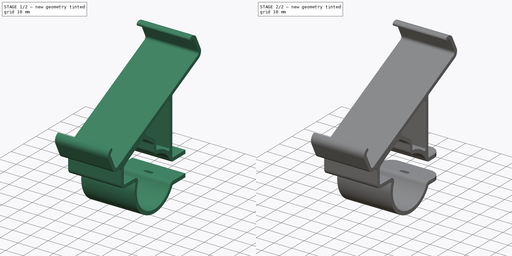
[diagram: build sequence overview — one tinted view per stage of 2, left to right]
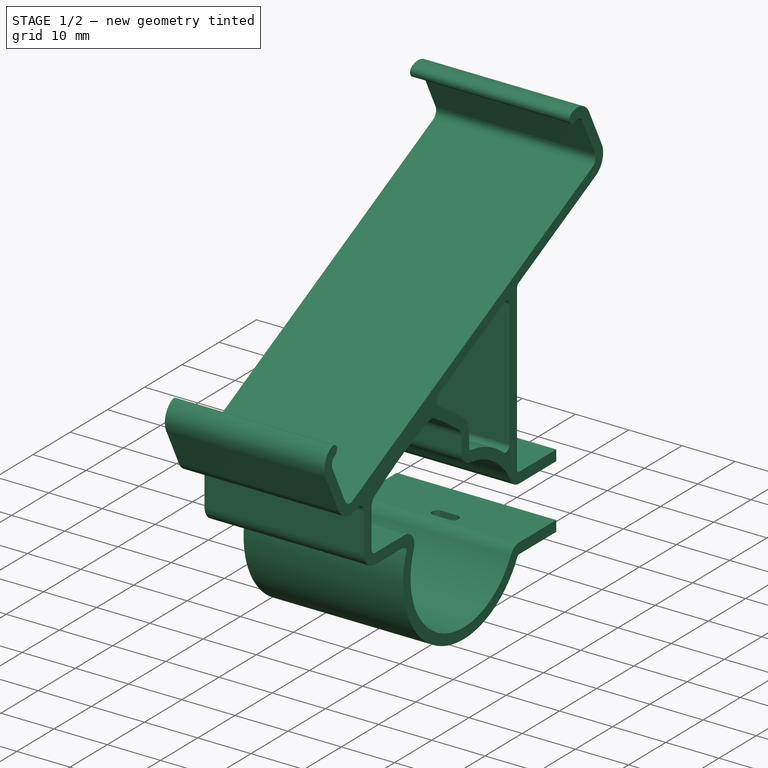
[diagram: stage 1 of 2 — iso view after this stage's code; geometry added in this stage tinted green]
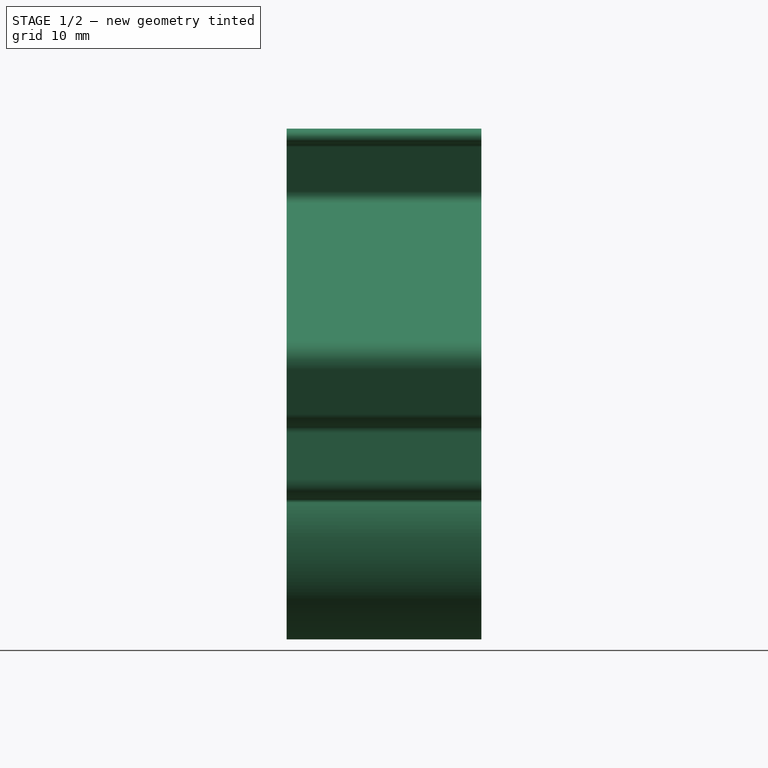
[diagram: stage 1 of 2 — front view after this stage's code; geometry added in this stage tinted green]
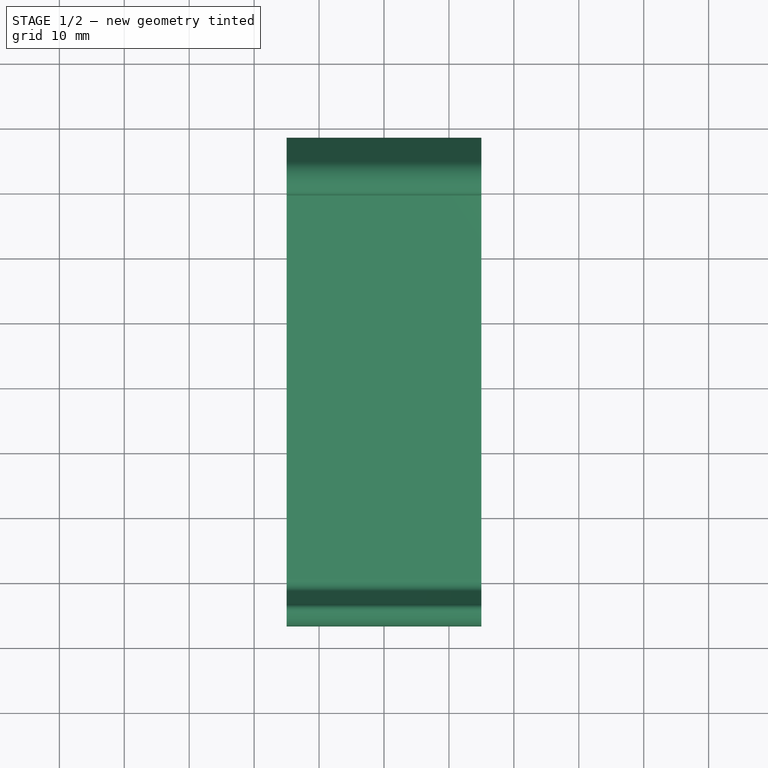
[diagram: stage 1 of 2 — top view after this stage's code; geometry added in this stage tinted green]
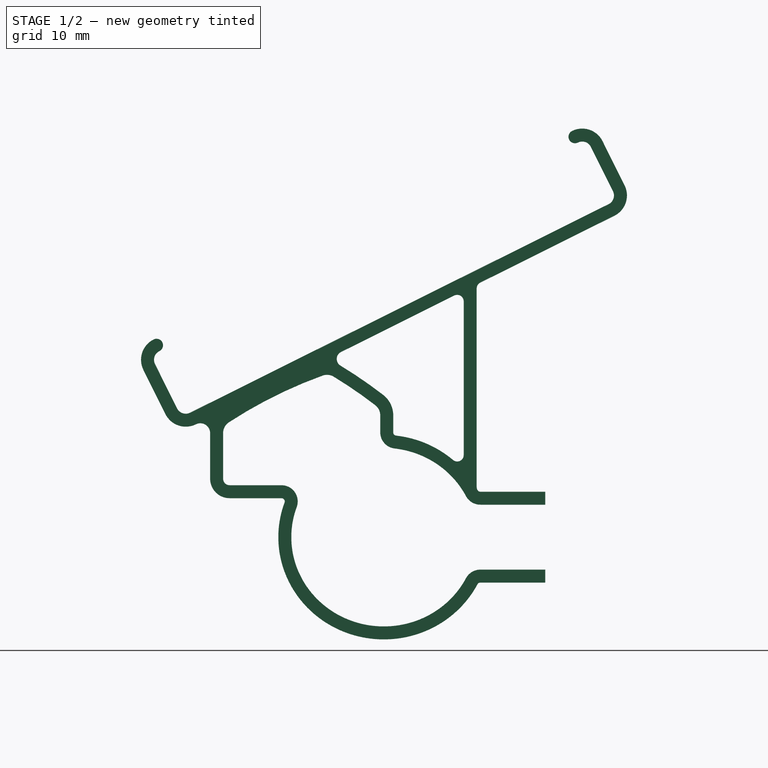
[diagram: stage 1 of 2 — right view after this stage's code; geometry added in this stage tinted green]
FCSTD DOCUMENT  (FreeCAD 0.19R24291 (Git))
Label: motorbike-mobile-support_v2
Comment: FreeCAD-models by mgesteiro -- https://github.com/mgesteiro/FreeCAD-models
License: Creative Commons Attribution-ShareAlike
LicenseURL: http://creativecommons.org/licenses/by-sa/4.0/
objects: Sketcher::SketchObject×2, Image::ImagePlane×1, PartDesign::Pad×1, PartDesign::Pocket×1, PartDesign::Fillet×1, PartDesign::Body×1
note: 9 computed .brp shape members not serialized (recipe doc carries the construction recipe); baked Part::Feature solids carry a one-line shape summary decoded from their .brp

FEATURE [Sketcher::SketchObject] Sketch  label="Sketch-profile"
  FullyConstrained = true
  MapMode = 5
  Placement = pos=(0,0,0) rot=(0.57735,0.57735,0.57735;2.0944rad)
  Support = -> [YZ_Plane]
  sketch-geometry (87):
    g0: ArcOfEllipse CenterX=0 CenterY=0 CenterZ=0 NormalX=0 NormalY=0 NormalZ=1 MajorRadius=14.25 MinorRadius=13.75 AngleXU=0 StartAngle=0.47747 EndAngle=1.4535
    g1: LineSegment StartX=14.25 StartY=0 StartZ=0 EndX=-14.25 EndY=0 EndZ=0
    g2: LineSegment StartX=0 StartY=13.75 StartZ=0 EndX=0 EndY=-13.75 EndZ=0
    g3: GeomPoint X=3.74166 Y=0 Z=0
    g4: ArcOfEllipse CenterX=0 CenterY=0 CenterZ=0 NormalX=0 NormalY=0 NormalZ=1 MajorRadius=16.25 MinorRadius=15.75 AngleXU=0 StartAngle=5.95633 EndAngle=6.28319
    g5: LineSegment StartX=16.25 StartY=0 StartZ=0 EndX=-16.25 EndY=0 EndZ=0
    g6: LineSegment StartX=0 StartY=15.75 StartZ=0 EndX=0 EndY=-15.75 EndZ=0
    g7: GeomPoint X=4 Y=0 Z=0
    g8: LineSegment StartX=-15.7616 StartY=5.99997 StartZ=0 EndX=-23.75 EndY=5.99997 EndZ=0
    g9: LineSegment StartX=-15.7616 StartY=8 StartZ=0 EndX=-23.75 EndY=8 EndZ=0
    g10: ArcOfCircle CenterX=-15.7616 CenterY=5.49997 CenterZ=0 NormalX=0 NormalY=0 NormalZ=1 AngleXU=0 Radius=0.5 StartAngle=5.92817 EndAngle=7.85398
    g11: ArcOfCircle CenterX=-15.7616 CenterY=5.49997 CenterZ=0 NormalX=0 NormalY=0 NormalZ=1 AngleXU=0 Radius=2.50003 StartAngle=5.92819 EndAngle=7.85398
    g12: ArcOfCircle CenterX=14.8595 CenterY=-7.5 CenterZ=0 NormalX=0 NormalY=0 NormalZ=1 AngleXU=0 Radius=2.5 StartAngle=1.5708 EndAngle=2.6494
    g13: LineSegment StartX=14.8595 StartY=-5 StartZ=0 EndX=24.8595 EndY=-5 EndZ=0
    g14: ArcOfCircle CenterX=14.8595 CenterY=-7.5 CenterZ=0 NormalX=0 NormalY=0 NormalZ=1 AngleXU=0 Radius=0.5 StartAngle=1.5708 EndAngle=2.64938
    g15: LineSegment StartX=14.8595 StartY=-7 StartZ=0 EndX=24.8595 EndY=-7 EndZ=0
    g16: LineSegment StartX=24.8595 StartY=-5 StartZ=0 EndX=24.8595 EndY=-7 EndZ=0
    g17: LineSegment StartX=-24.75 StartY=9 StartZ=0 EndX=-24.75 EndY=16.0244 EndZ=0
    g18: LineSegment StartX=-0.55 StartY=18.75 StartZ=0 EndX=-0.55 EndY=16.1395 EndZ=0
    g19: ArcOfCircle CenterX=14.8595 CenterY=7.5 CenterZ=0 NormalX=0 NormalY=0 NormalZ=1 AngleXU=0 Radius=2.5 StartAngle=3.63379 EndAngle=4.71239
    g20: LineSegment StartX=14.8595 StartY=5 StartZ=0 EndX=24.8595 EndY=5 EndZ=0
    g21: LineSegment StartX=24.8595 StartY=5 StartZ=0 EndX=24.8595 EndY=7 EndZ=0
    g22: LineSegment StartX=-26.75 StartY=9 StartZ=0 EndX=-26.75 EndY=16.0243 EndZ=0
    g23: LineSegment StartX=1.45 StartY=18.75 StartZ=0 EndX=1.45 EndY=16.1395 EndZ=0
    g24: ArcOfCircle CenterX=14.8595 CenterY=7.5 CenterZ=0 NormalX=0 NormalY=0 NormalZ=1 AngleXU=0 Radius=0.5 StartAngle=3.63379 EndAngle=4.71239
    g25: LineSegment StartX=14.8595 StartY=7 StartZ=0 EndX=24.8595 EndY=7 EndZ=0
    g26: LineSegment StartX=12.6563 StartY=-6.31859 StartZ=0 EndX=14.8595 EndY=-7.5 EndZ=0
    g27: LineSegment StartX=-13.4175 StartY=4.63098 StartZ=0 EndX=-15.7616 EndY=5.49997 EndZ=0
    g28: GeomPoint X=12.6563 Y=-6.31859 Z=0
    g29: ArcOfEllipse CenterX=0 CenterY=0 CenterZ=0 NormalX=0 NormalY=0 NormalZ=1 MajorRadius=16.25 MinorRadius=15.75 AngleXU=-0.000460382 StartAngle=2.7971 EndAngle=5.80433
    g30: ArcOfCircle CenterX=1.95 CenterY=16.1395 CenterZ=0 NormalX=0 NormalY=0 NormalZ=1 AngleXU=0 Radius=2.5 StartAngle=3.14159 EndAngle=4.59918
    g31: LineSegment StartX=1.95 StartY=16.1395 StartZ=0 EndX=1.66757 EndY=13.6555 EndZ=0
    g32: GeomPoint X=1.66757 Y=13.6555 Z=0
    g33: LineSegment StartX=12.6563 StartY=6.31859 StartZ=0 EndX=14.8595 EndY=7.5 EndZ=0
    g34: GeomPoint X=12.6563 Y=6.31859 Z=0
    g35: ArcOfEllipse CenterX=0 CenterY=0 CenterZ=0 NormalX=0 NormalY=0 NormalZ=1 MajorRadius=16.25 MinorRadius=15.75 AngleXU=0.000127427 StartAngle=0.85548 EndAngle=1.45388
    g36: GeomPoint X=-13.4175 Y=4.63098 Z=0
    g37: ArcOfEllipse CenterX=0 CenterY=0 CenterZ=0 NormalX=0 NormalY=0 NormalZ=1 MajorRadius=14.25 MinorRadius=13.75 AngleXU=6e-16 StartAngle=2.79808 EndAngle=5.80572
    g38: ArcOfCircle CenterX=1.95 CenterY=16.1395 CenterZ=0 NormalX=0 NormalY=0 NormalZ=1 AngleXU=0 Radius=0.5 StartAngle=3.14159 EndAngle=4.59917
    g39: ArcOfCircle CenterX=-8.75 CenterY=23 CenterZ=0 NormalX=0 NormalY=0 NormalZ=1 AngleXU=0 Radius=2 StartAngle=1.02518 EndAngle=1.91778
    g40: ArcOfCircle CenterX=-8.75 CenterY=23 CenterZ=0 NormalX=0 NormalY=0 NormalZ=1 AngleXU=0 Radius=4 StartAngle=1.02518 EndAngle=1.91778
    g41: ArcOfCircle CenterX=-23.75 CenterY=9 CenterZ=0 NormalX=0 NormalY=0 NormalZ=1 AngleXU=0 Radius=3.00003 StartAngle=3.14159 EndAngle=4.71239
    g42: ArcOfCircle CenterX=-22.75 CenterY=16.0243 CenterZ=0 NormalX=0 NormalY=0 NormalZ=1 AngleXU=0 Radius=4 StartAngle=2.14832 EndAngle=3.14159
    g43: ArcOfCircle CenterX=-2.55 CenterY=18.75 CenterZ=0 NormalX=0 NormalY=0 NormalZ=1 AngleXU=0 Radius=4 StartAngle=1e-16 EndAngle=0.91458
    g44: Ellipse CenterX=0 CenterY=0 CenterZ=0 NormalX=0 NormalY=0 NormalZ=1 MajorRadius=14.25 MinorRadius=13.75 AngleXU=0
    g45: LineSegment StartX=14.25 StartY=0 StartZ=0 EndX=-14.25 EndY=0 EndZ=0
    g46: LineSegment StartX=0 StartY=13.75 StartZ=0 EndX=0 EndY=-13.75 EndZ=0
    g47: GeomPoint X=3.74166 Y=0 Z=0
    g48: GeomPoint X=-3.74166 Y=0 Z=0
    g49: ArcOfCircle CenterX=14.3745 CenterY=-40.9473 CenterZ=0 NormalX=0 NormalY=0 NormalZ=1 AngleXU=0 Radius=70 StartAngle=1.91778 EndAngle=2.14832
    g50: ArcOfCircle CenterX=14.3745 CenterY=-40.9473 CenterZ=0 NormalX=0 NormalY=0 NormalZ=1 AngleXU=0 Radius=72 StartAngle=1.91778 EndAngle=2.14832
    g51: LineSegment StartX=-23.75 StartY=9 StartZ=0 EndX=0 EndY=9 EndZ=0
    g52: ArcOfCircle CenterX=-44.0384 CenterY=-35.1269 CenterZ=0 NormalX=0 NormalY=0 NormalZ=1 AngleXU=0 Radius=70 StartAngle=0.91458 EndAngle=1.02518
    g53: ArcOfCircle CenterX=-44.0384 CenterY=-35.1269 CenterZ=0 NormalX=0 NormalY=0 NormalZ=1 AngleXU=0 Radius=72 StartAngle=0.91458 EndAngle=1.02518
    g54: ArcOfCircle CenterX=-23.75 CenterY=9 CenterZ=0 NormalX=0 NormalY=0 NormalZ=1 AngleXU=0 Radius=1 StartAngle=3.14159 EndAngle=4.71239
    g55: ArcOfCircle CenterX=-22.75 CenterY=16.0244 CenterZ=0 NormalX=0 NormalY=0 NormalZ=1 AngleXU=0 Radius=2 StartAngle=2.14832 EndAngle=3.14159
    g56: ArcOfCircle CenterX=-2.55 CenterY=18.75 CenterZ=0 NormalX=0 NormalY=0 NormalZ=1 AngleXU=0 Radius=2 StartAngle=-9e-16 EndAngle=0.91458
    g57: LineSegment StartX=-29.8316 StartY=19.1698 StartZ=0 EndX=34.612 EndY=51.2794 EndZ=0
    g58: LineSegment StartX=35.2856 StartY=53.291 StartZ=0 EndX=31.8963 EndY=60.0933 EndZ=0
    g59: LineSegment StartX=33.6864 StartY=60.9853 StartZ=0 EndX=37.0757 EndY=54.1829 EndZ=0
    g60: LineSegment StartX=35.5039 StartY=49.4893 StartZ=0 EndX=14.8542 EndY=39.2004 EndZ=0
    g61: LineSegment StartX=-33.6332 StartY=18.9515 StartZ=0 EndX=-37.0225 EndY=25.7538 EndZ=0
    g62: LineSegment StartX=-35.2324 StartY=26.6458 StartZ=0 EndX=-31.8431 EndY=19.8434 EndZ=0
    g63: ArcOfCircle CenterX=-30.5005 CenterY=20.5124 CenterZ=0 NormalX=0 NormalY=0 NormalZ=1 AngleXU=0 Radius=1.5 StartAngle=3.60385 EndAngle=5.17464
    g64: ArcOfCircle CenterX=33.943 CenterY=52.622 CenterZ=0 NormalX=0 NormalY=0 NormalZ=1 AngleXU=0 Radius=1.5 StartAngle=5.17464 EndAngle=6.74544
    g65: ArcOfCircle CenterX=33.943 CenterY=52.622 CenterZ=0 NormalX=0 NormalY=0 NormalZ=1 AngleXU=0 Radius=3.5 StartAngle=5.17464 EndAngle=6.74544
    g66: ArcOfCircle CenterX=-30.5005 CenterY=20.5124 CenterZ=0 NormalX=0 NormalY=0 NormalZ=1 AngleXU=0 Radius=3.5 StartAngle=3.60385 EndAngle=5.17464
    g67: ArcOfCircle CenterX=-33.8899 CenterY=27.3147 CenterZ=0 NormalX=0 NormalY=0 NormalZ=1 AngleXU=0 Radius=1.5 StartAngle=2.03305 EndAngle=3.60385
    g68: ArcOfCircle CenterX=30.5537 CenterY=59.4244 CenterZ=0 NormalX=0 NormalY=0 NormalZ=1 AngleXU=0 Radius=1.5 StartAngle=0.462255 EndAngle=2.03305
    g69: ArcOfCircle CenterX=-33.8899 CenterY=27.3147 CenterZ=0 NormalX=0 NormalY=0 NormalZ=1 AngleXU=0 Radius=3.5 StartAngle=2.03305 EndAngle=3.60385
    g70: ArcOfCircle CenterX=-35.0048 CenterY=29.5524 CenterZ=0 NormalX=0 NormalY=0 NormalZ=1 AngleXU=0 Radius=1 StartAngle=5.17464 EndAngle=8.31624
    g71: ArcOfCircle CenterX=30.5537 CenterY=59.4244 CenterZ=0 NormalX=0 NormalY=0 NormalZ=1 AngleXU=0 Radius=3.5 StartAngle=0.462255 EndAngle=2.03305
    g72: ArcOfCircle CenterX=29.4388 CenterY=61.662 CenterZ=0 NormalX=0 NormalY=0 NormalZ=1 AngleXU=0 Radius=1 StartAngle=2.03305 EndAngle=5.17464
    g73: LineSegment StartX=-34.5588 StartY=28.6573 StartZ=0 EndX=-29.8316 EndY=19.1698 EndZ=0
    g74: LineSegment StartX=29.8847 StartY=60.767 StartZ=0 EndX=34.612 EndY=51.2794 EndZ=0
    g75: ArcOfCircle CenterX=-6.05201 CenterY=27.4441 CenterZ=0 NormalX=0 NormalY=0 NormalZ=1 AngleXU=0 Radius=1.19897 StartAngle=2.03305 EndAngle=4.16677
    g76: ArcOfCircle CenterX=-28.2643 CenterY=16.0243 CenterZ=0 NormalX=0 NormalY=0 NormalZ=1 AngleXU=0 Radius=1.51427 StartAngle=0 EndAngle=2.03305
    g77: LineSegment StartX=-10.1103 StartY=26.7616 StartZ=0 EndX=-24.9338 EndY=19.3756 EndZ=0
    g78: ArcOfCircle CenterX=15.3002 CenterY=7.73628 CenterZ=0 NormalX=0 NormalY=0 NormalZ=1 AngleXU=0 Radius=1 StartAngle=3.14159 EndAngle=3.63379
    g79: LineSegment StartX=14.3002 StartY=7.73628 StartZ=0 EndX=14.3002 EndY=38.3054 EndZ=0
    g80: ArcOfCircle CenterX=15.3002 CenterY=38.3054 CenterZ=0 NormalX=0 NormalY=0 NormalZ=1 AngleXU=0 Radius=1 StartAngle=2.03305 EndAngle=3.14159
    g81: LineSegment StartX=12.3002 StartY=36.3123 StartZ=0 EndX=12.3002 EndY=12.6558 EndZ=0
    g82: ArcOfCircle CenterX=11.3002 CenterY=12.6558 CenterZ=0 NormalX=0 NormalY=0 NormalZ=1 AngleXU=0 Radius=1 StartAngle=4.01264 EndAngle=6.28319
    g83: ArcOfCircle CenterX=11.3002 CenterY=36.3123 CenterZ=0 NormalX=0 NormalY=0 NormalZ=1 AngleXU=0 Radius=1 StartAngle=0 EndAngle=2.03305
    g84: LineSegment StartX=10.8542 StartY=37.2074 StartZ=0 EndX=-6.58671 EndY=28.5173 EndZ=0
    g85: LineSegment StartX=34.612 StartY=51.2794 StartZ=0 EndX=35.5039 EndY=49.4893 EndZ=0
    g86: LineSegment StartX=-29.8316 StartY=19.1698 StartZ=0 EndX=-28.9396 EndY=17.3797 EndZ=0
  constraints (201):
    c: InternalAlignment(g1,g0)
    c: InternalAlignment(g2,g0)
    c: InternalAlignment(g3,g0)
    c: DistanceY(g2,g2) = 27.5
    c: InternalAlignment(g5,g4)
    c: InternalAlignment(g6,g4)
    c: InternalAlignment(g7,g4)
    c: Coincident(g4,g0)
    c: PointOnObject(g5,g-1)
    c: DistanceX(g5,g5) = 32.5
    c: DistanceY(g6,g6) = 31.5
    c: Tangent(g8,g10) = -1.5708
    c: Tangent(g11,g9) = -1.5708
    c: Horizontal(g15)
    c: Horizontal(g13)
    c: Coincident(g16,g13)
    c: Coincident(g16,g15)
    c: Vertical(g16)
    c: Tangent(g15,g14) = 1.5708
    c: Tangent(g12,g13) = 1.5708
    c: Tangent(g19,g20) = -1.5708
    c: Coincident(g20,g21)
    c: Vertical(g21)
    c: Tangent(g24,g25) = -1.5708
    c: Coincident(g21,g25)
    c: Horizontal(g20)
    c: Horizontal(g25)
    c: DistanceY(g16,g16) = 2
    c: Equal(g21,g16)
    c: Coincident(g19,g24)
    c: Coincident(g12,g14)
    c: Coincident(g26,g12)
    c: Coincident(g10,g11)
    c: Coincident(g27,g10)
    c: PointOnObject(g27,g0)
    c: PointOnObject(g28,g0)
    c: PointOnObject(g28,g26)
    c: Perpendicular(g0,g26,g28) = 4.71239
    c: PointOnObject(g4,g12)
    c: Equal(g4,g29)
    c: Coincident(g4,g29)
    c: Coincident(g0,g-1)
    c: Coincident(g31,g30)
    c: PointOnObject(g32,g0)
    c: PointOnObject(g32,g31)
    c: Perpendicular(g0,g31,g32) = 1.5708
    c: Coincident(g33,g19)
    c: PointOnObject(g34,g0)
    c: PointOnObject(g34,g33)
    c: Perpendicular(g0,g33,g34) = 4.71239
    c: Coincident(g0,g19)
    c: Coincident(g37,g12)
    c: Coincident(g33,g0)
    c: Equal(g4,g35)
    c: Coincident(g4,g35)
    c: PointOnObject(g1,g5)
    c: DistanceX(g1,g1) = 28.5
    c: Coincident(g26,g37)
    c: PointOnObject(g36,g0)
    c: PointOnObject(g36,g27)
    c: Perpendicular(g0,g27,g36) = 4.71239
    c: Equal(g0,g37)
    c: Coincident(g0,g30)
    c: Coincident(g37,g11)
    c: Coincident(g0,g37)
    c: Tangent(g18,g30) = -1.5708
    c: Coincident(g38,g30)
    c: Tangent(g38,g23) = -1.5708
    c: Coincident(g31,g0)
    c: Vertical(g22)
    c: Vertical(g17)
    c: Vertical(g18)
    c: Coincident(g27,g11)
    c: Coincident(g39,g40)
    c: Symmetric(g20,g13,g-1)
    c: DistanceY(g13,g20) = 10
    c: Radius(g39) = 2
    c: Tangent(g8,g41) = 1.5708
    c: Tangent(g22,g41) = 1.5708
    c: Tangent(g22,g42) = 1.5708
    c: Tangent(g23,g43) = 1.5708
    c: InternalAlignment(g45-g48 -> g44) x4
    c: Coincident(g44,g0)
    c: Coincident(g45,g1)
    c: DistanceY(g46,g46) = 27.5
    c: DistanceX(g20,g20) = 10
    c: PointOnObject(g24,g33)
    c: Equal(g14,g24)
    c: Radius(g14) = 0.5
    c: Equal(g38,g14)
    c: PointOnObject(g4,g-1)
    c: Coincident(g50,g49)
    c: Tangent(g40,g50) = -1.5708
    c: Tangent(g42,g50) = -1.5708
    c: Coincident(g51,g41)
    c: PointOnObject(g51,g2)
    c: Horizontal(g51)
    c: Radius(g49) = 70
    c: Tangent(g52,g39) = -1.5708
    c: Coincident(g53,g52)
    c: Tangent(g53,g40) = -1.5708
    c: Tangent(g53,g43) = -1.5708
    c: Radius(g52) = 70
    c: Tangent(g38,g35) = 1.5708
    c: Tangent(g29,g10) = 1.5708
    c: Equal(g14,g10)
    c: Tangent(g49,g39) = -1.5708
    c: Horizontal(g8)
    c: Tangent(g17,g54) = 1.5708
    c: Tangent(g9,g54) = 1.5708
    c: DistanceX(g17,g39) = 16
    c: Coincident(g41,g54)
    c: DistanceY(g9) = 8
    c: Radius(g40) = 4
    c: Tangent(g17,g55) = 1.5708
    c: Tangent(g49,g55) = -1.5708
    c: Tangent(g18,g56) = 1.5708
    c: Tangent(g52,g56) = -1.5708
    c: DistanceX(g17,g18) = 24.2
    c: DistanceX(g17,g1) = 39
    c: Equal(g39,g55)
    c: Horizontal(g9)
    c: DistanceY(g9,g49) = 9.7
    c: Coincident(g43,g56)
    c: DistanceY(g2,g43) = 5
    c: Equal(g42,g40)
    c: Tangent(g29,g14) = 1.5708
    c: Equal(g39,g56)
    c: Radius(g54) = 1
    c: DistanceY(g39) = 23
    c: Parallel(g57,g60)
    c: Parallel(g62,g61)
    c: Parallel(g58,g59)
    c: Tangent(g62,g63) = -1.5708
    c: Tangent(g57,g63) = -1.5708
    c: Tangent(g58,g64) = -1.5708
    c: Tangent(g57,g64) = -1.5708
    c: Tangent(g59,g65) = 1.5708
    c: Tangent(g60,g65) = 1.5708
    c: Tangent(g61,g66) = 1.5708
    c: Coincident(g63,g66)
    c: Coincident(g64,g65)
    c: Radius(g63) = 1.5
    c: Equal(g63,g64)
    c: Distance(g62,g58) = 75
    c: Perpendicular(g57,g62)
    c: Perpendicular(g57,g58)
    c: Radius(g66) = 3.5
    c: Tangent(g62,g67) = -1.5708
    c: Tangent(g58,g68) = -1.5708
    c: Equal(g63,g67)
    c: Equal(g67,g68)
    c: Equal(g62,g58)
    c: Tangent(g61,g69) = 1.5708
    c: Coincident(g69,g67)
    c: Tangent(g70,g67) = 1.5708
    c: Tangent(g70,g69) = -1.5708
    c: Tangent(g59,g71) = 1.5708
    c: Tangent(g71,g72) = -1.5708
    c: Coincident(g68,g71)
    c: Tangent(g72,g68) = 1.5708
    c: Coincident(g73,g67)
    c: Coincident(g73,g57)
    c: PointOnObject(g67,g73)
    c: Distance(g73) = 10.6
    c: Coincident(g74,g68)
    c: Coincident(g74,g57)
    c: PointOnObject(g68,g74)
    c: PointOnObject(g42,g60)
    c: PointOnObject(g40,g60)
    c: Coincident(g75,g40)
    c: Tangent(g75,g53)
    c: Tangent(g76,g22) = -1.5708
    c: PointOnObject(g77,g50)
    c: PointOnObject(g77,g50)
    c: Tangent(g60,g77)
    c: Tangent(g24,g78) = -1.5708
    c: Tangent(g78,g79) = 1.5708
    c: Tangent(g79,g80) = 1.5708
    c: Tangent(g81,g82) = 1.5708
    c: Tangent(g81,g83) = 1.5708
    c: Equal(g80,g83)
    c: Equal(g83,g82)
    c: Equal(g82,g78)
    c: Radius(g82) = 1
    c: Vertical(g81)
    c: Vertical(g79)
    c: DistanceX(g81,g79) = 2
    c: Tangent(g35,g82) = 1.5708
    c: Vertical(g23)
    c: Tangent(g60,g80) = -1.5708
    c: Tangent(g84,g83) = -1.5708
    c: Tangent(g60,g84)
    c: Tangent(g66,g76) = 1.5708
    c: Coincident(g85,g57)
    c: Coincident(g85,g60)
    c: Distance(g85) = 2
    c: Coincident(g86,g57)
    c: Coincident(g86,g66)
    c: Parallel(g86,g73)
    c: Tangent(g84,g75) = -1.5708
FEATURE [Image::ImagePlane] ImagePlane002  label="Image-profile-wire"
  Placement = pos=(0,-4.45,6.25) rot=(0.57735,0.57735,0.57735;2.0944rad)
  XSize = 50.4183
  YSize = 50.4183
FEATURE [PartDesign::Pad] Pad  label="Pad-profile"
  Direction = (1,1,1)
  Length = 30
  Length2 = 100
  Midplane = true
  Placement = pos=(0,0,0) rot=(0.57735,0.57735,0.57735;2.0944rad)
  Profile = -> Sketch
  Type = 0
FEATURE [Sketcher::SketchObject] Sketch001  label="Sketch-zip-tie-hole"
  FullyConstrained = true
  MapMode = 5
  Support = -> [XY_Plane]
  sketch-geometry (4):
    g0: ArcOfCircle CenterX=-1.5 CenterY=16.5 CenterZ=0 NormalX=0 NormalY=0 NormalZ=1 AngleXU=0 Radius=1 StartAngle=1.5708 EndAngle=4.71239
    g1: ArcOfCircle CenterX=1.5 CenterY=16.5 CenterZ=0 NormalX=0 NormalY=0 NormalZ=1 AngleXU=0 Radius=1 StartAngle=4.71239 EndAngle=7.85398
    g2: LineSegment StartX=-1.5 StartY=15.5 StartZ=0 EndX=1.5 EndY=15.5 EndZ=0
    g3: LineSegment StartX=-1.5 StartY=17.5 StartZ=0 EndX=1.5 EndY=17.5 EndZ=0
  constraints (9):
    c: Tangent(g0,g3) = 1.5708
    c: Tangent(g0,g2) = -1.5708
    c: Tangent(g2,g1) = -1.5708
    c: Tangent(g3,g1) = 1.5708
    c: Horizontal(g2)
    c: DistanceY(g1,g1) = 2
    c: DistanceX(g3,g3) = 3
    c: Symmetric(g0,g1,g-2)
    c: DistanceY(g1) = 15.5
FEATURE [PartDesign::Pocket] Pocket  label="Pocket-zip-tie-hole"
  BaseFeature = -> Pad
  Length = 16
  Length2 = 100
  Midplane = true
  Placement = pos=(0,0,0) rot=(0.57735,0.57735,0.57735;2.0944rad)
  Profile = -> Sketch001
  Type = 0
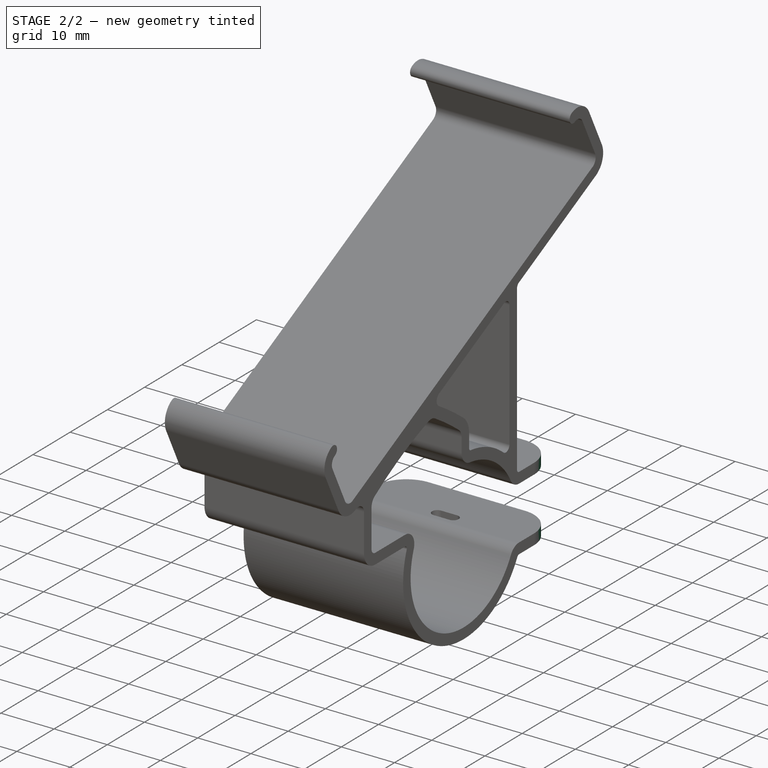
[diagram: stage 2 of 2 — iso view after this stage's code; geometry added in this stage tinted green]
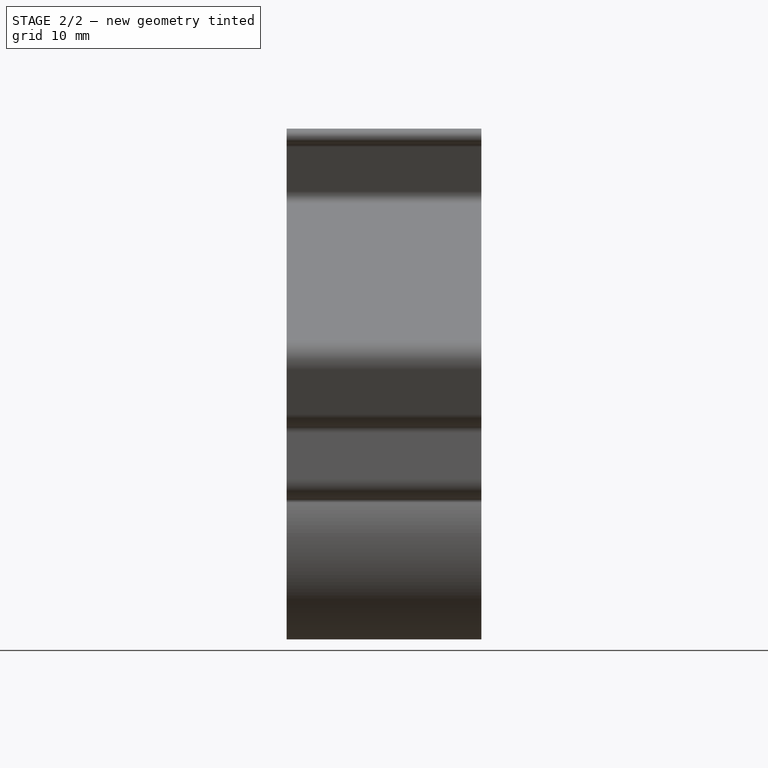
[diagram: stage 2 of 2 — front view after this stage's code; geometry added in this stage tinted green]
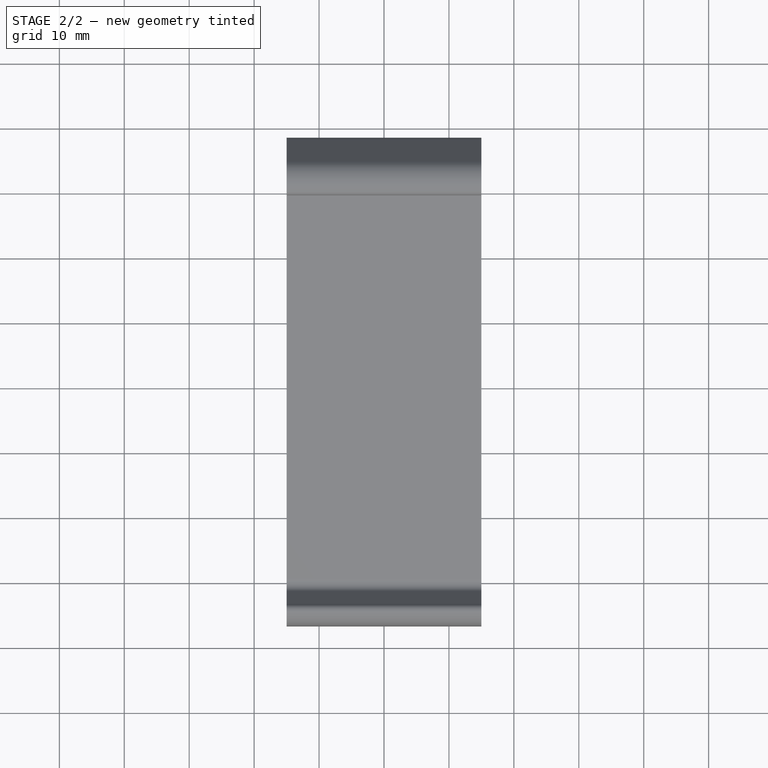
[diagram: stage 2 of 2 — top view after this stage's code; geometry added in this stage tinted green]
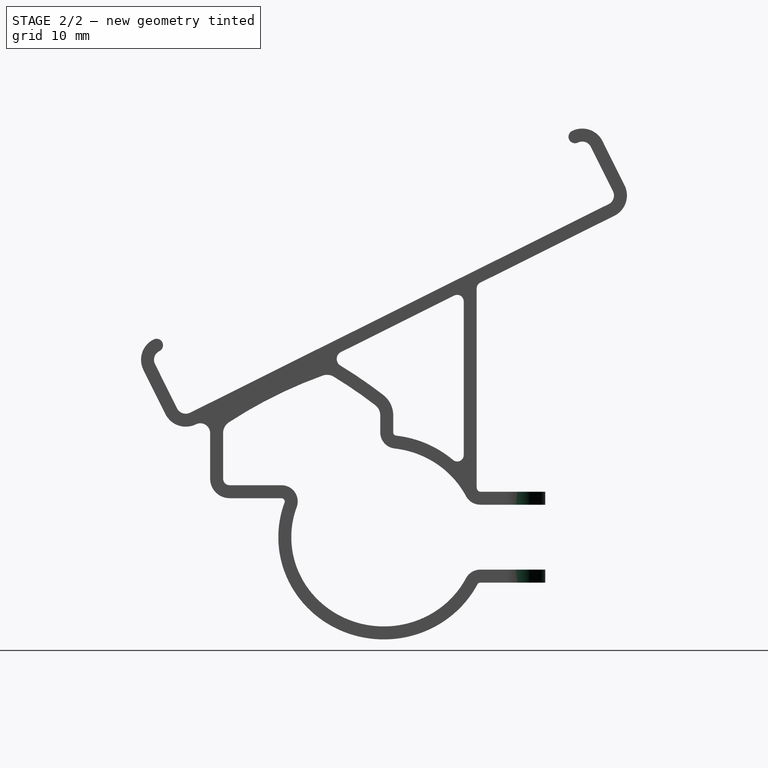
[diagram: stage 2 of 2 — right view after this stage's code; geometry added in this stage tinted green]
FEATURE [PartDesign::Fillet] Fillet
  Base = -> Pocket [Edge114,Edge84,Edge29,Edge59]
  BaseFeature = -> Pocket
  Placement = pos=(0,0,0) rot=(0.57735,0.57735,0.57735;2.0944rad)
  Radius = 6
  SupportTransform = false
FEATURE [PartDesign::Body] Body
  Group = -> [Sketch,Pad,Sketch001,Pocket,Fillet]
  Origin = -> Origin
  Tip = -> Fillet
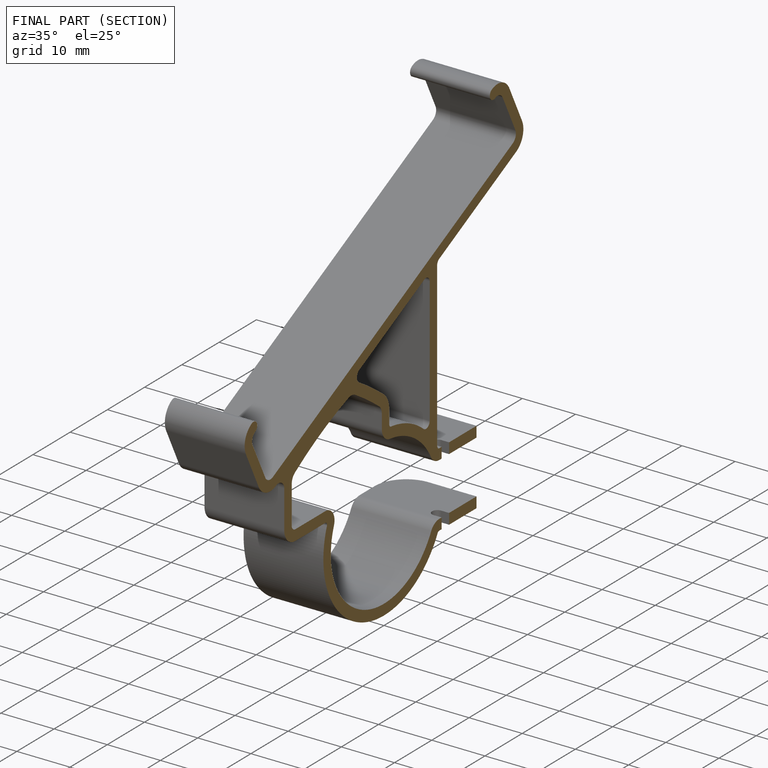
[diagram: finished part — half-section view (interior)]
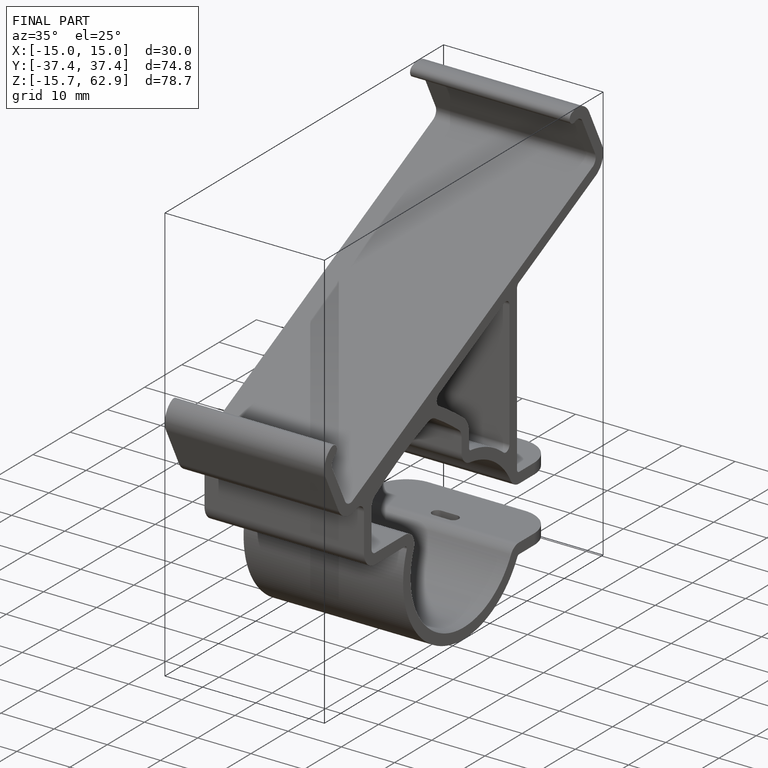
[diagram: finished part — iso view with bounding-box wireframe]
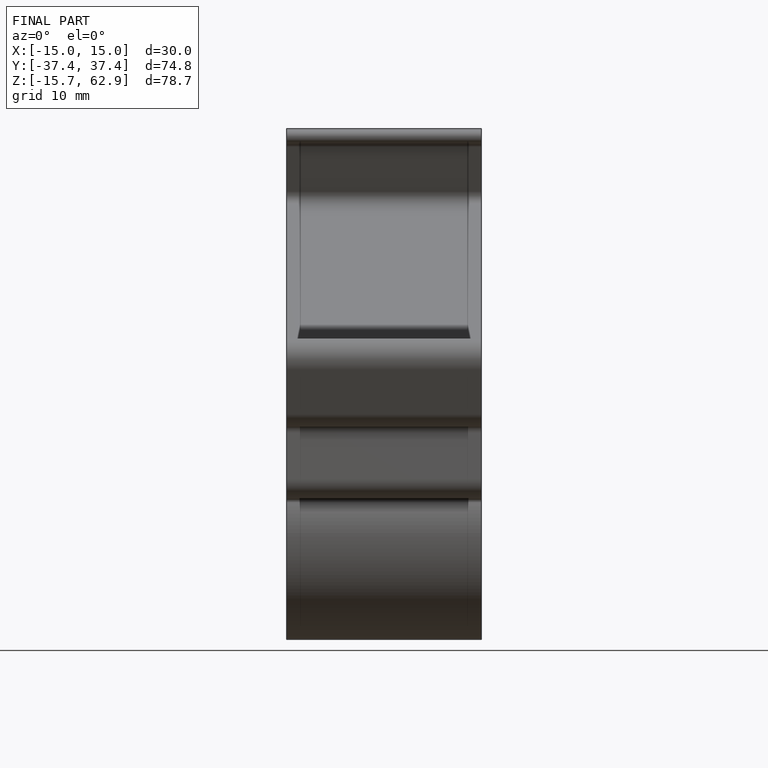
[diagram: finished part — front view with bounding-box wireframe]
